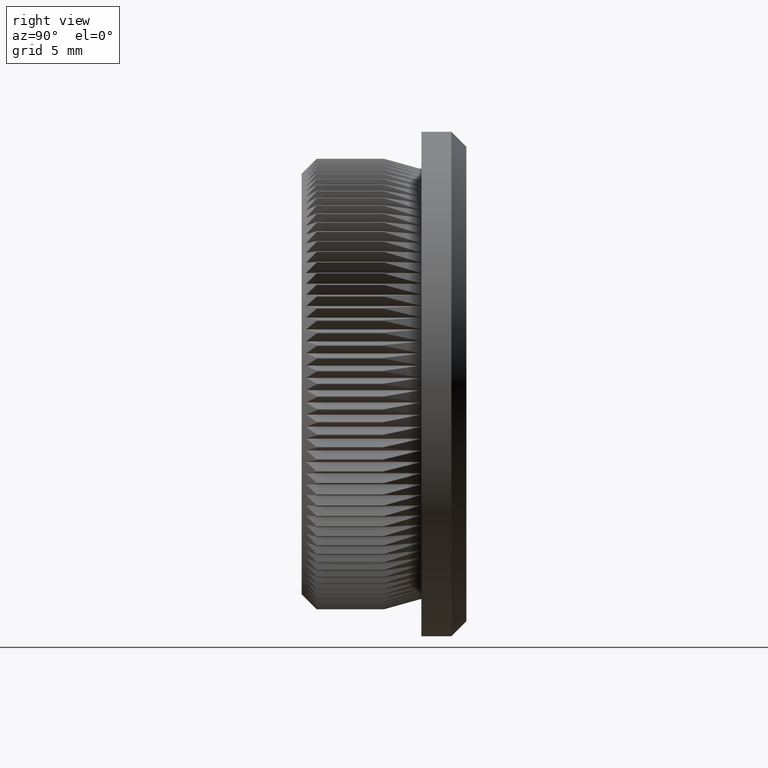
[diagram: clean part render]
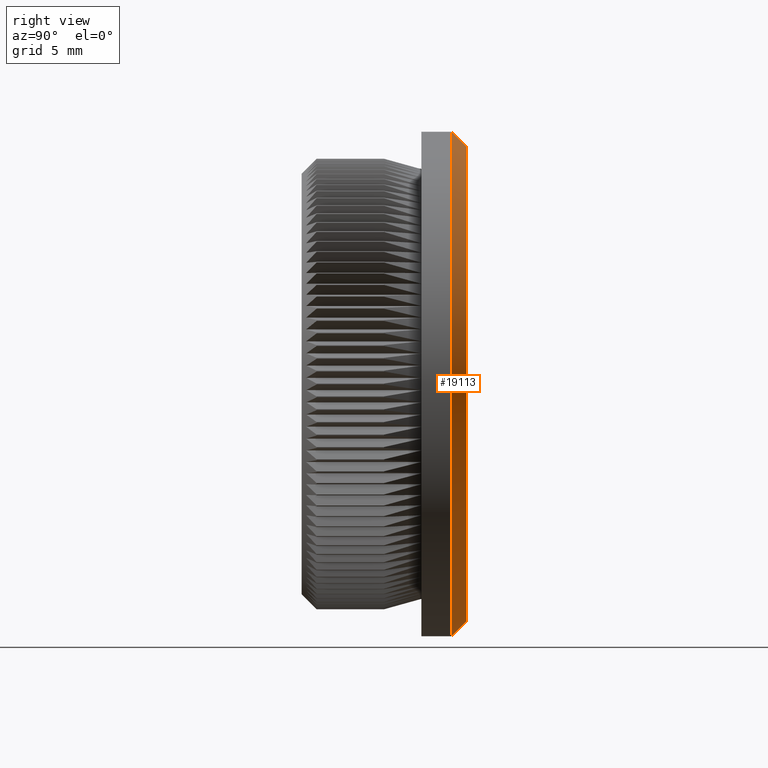
[diagram: same view with one face highlighted and labeled with its STEP entity id]
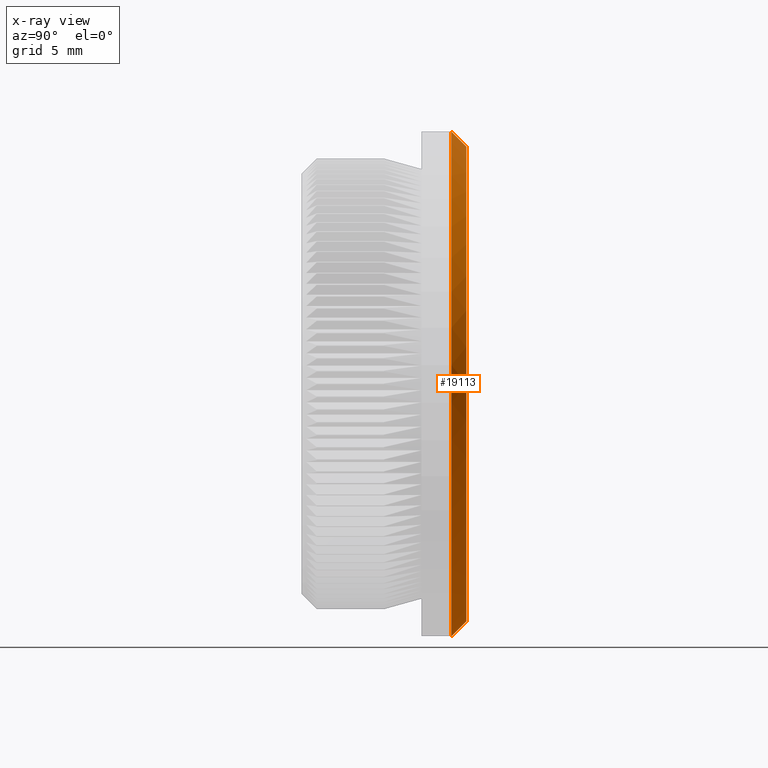
[diagram: x-ray of the same camera — body ghosted, the highlighted face saturated]
A machine part, right view. The second image highlights one B-rep face of the part: STEP entity #19113.
The next image is the same camera in x-ray: the body ghosted, the highlighted face saturated — about 0% of this face is hidden behind the body in this view.
In plain terms, the highlighted conical surface has half-angle 45 deg.
Its self-contained STEP definition (entity closure, byte-faithful):
#1326 = AXIS2_PLACEMENT_3D ( 'NONE', #23313, #6053, #8420 ) ;
#1611 = AXIS2_PLACEMENT_3D ( 'NONE', #25235, #3926, #12313 ) ;
#2223 = FACE_OUTER_BOUND ( 'NONE', #26383, .T. ) ;
#3043 = CIRCLE ( 'NONE', #1326, 16.85000000000000100 ) ;
#3302 = DIRECTION ( 'NONE',  ( 0.0000000000000000000, -0.7071067811865451300, -0.7071067811865500200 ) ) ;
#3926 = DIRECTION ( 'NONE',  ( -0.0000000000000000000, -1.000000000000000000, -0.0000000000000000000 ) ) ;
#6053 = DIRECTION ( 'NONE',  ( -0.0000000000000000000, -1.000000000000000000, -0.0000000000000000000 ) ) ;
#6550 = VERTEX_POINT ( 'NONE', #20574 ) ;
#6877 = ORIENTED_EDGE ( 'NONE', *, *, #19504, .F. ) ;
#8420 = DIRECTION ( 'NONE',  ( 0.0000000000000000000, 0.0000000000000000000, 1.000000000000000000 ) ) ;
#12092 = DIRECTION ( 'NONE',  ( 0.0000000000000000000, 0.0000000000000000000, 1.000000000000000000 ) ) ;
#12189 = DIRECTION ( 'NONE',  ( 0.0000000000000000000, 1.000000000000000000, 0.0000000000000000000 ) ) ;
#12313 = DIRECTION ( 'NONE',  ( 0.0000000000000000000, 0.0000000000000000000, -1.000000000000000000 ) ) ;
#12801 = LINE ( 'NONE', #23986, #16169 ) ;
#12984 = CIRCLE ( 'NONE', #13497, 15.84999999999998500 ) ;
#13028 = CARTESIAN_POINT ( 'NONE',  ( 0.0000000000000000000, 11.00000000000000000, -15.84999999999998500 ) ) ;
#13497 = AXIS2_PLACEMENT_3D ( 'NONE', #24823, #12189, #12092 ) ;
#13760 = VERTEX_POINT ( 'NONE', #13028 ) ;
#14587 = EDGE_CURVE ( 'NONE', #6550, #26189, #12801, .T. ) ;
#15736 = DIRECTION ( 'NONE',  ( 8.659560562354963700E-017, -0.7071067811865451300, 0.7071067811865500200 ) ) ;
#15874 = VECTOR ( 'NONE', #3302, 1000.000000000000100 ) ;
#16169 = VECTOR ( 'NONE', #15736, 1000.000000000000100 ) ;
#16344 = ORIENTED_EDGE ( 'NONE', *, *, #23287, .F. ) ;
#16789 = CARTESIAN_POINT ( 'NONE',  ( 0.0000000000000000000, 9.999999999999991100, -16.85000000000000100 ) ) ;
#19113 = ADVANCED_FACE ( 'NONE', ( #2223 ), #22704, .T. ) ;
#19504 = EDGE_CURVE ( 'NONE', #6550, #13760, #12984, .T. ) ;
#20574 = CARTESIAN_POINT ( 'NONE',  ( 2.002297516605921500E-015, 11.00000000000000000, 15.84999999999998500 ) ) ;
#21575 = LINE ( 'NONE', #24500, #15874 ) ;
#21726 = ORIENTED_EDGE ( 'NONE', *, *, #14587, .T. ) ;
#22704 = CONICAL_SURFACE ( 'NONE', #1611, 16.85000000000000100, 0.7853981633974517200 ) ;
#23287 = EDGE_CURVE ( 'NONE', #13760, #25947, #21575, .T. ) ;
#23313 = CARTESIAN_POINT ( 'NONE',  ( 0.0000000000000000000, 9.999999999999991100, 0.0000000000000000000 ) ) ;
#23749 = ORIENTED_EDGE ( 'NONE', *, *, #25896, .F. ) ;
#23986 = CARTESIAN_POINT ( 'NONE',  ( 2.063529856563290200E-015, 9.999999999999991100, 16.85000000000000100 ) ) ;
#24500 = CARTESIAN_POINT ( 'NONE',  ( 0.0000000000000000000, 9.999999999999991100, -16.85000000000000100 ) ) ;
#24823 = CARTESIAN_POINT ( 'NONE',  ( 0.0000000000000000000, 11.00000000000000000, 0.0000000000000000000 ) ) ;
#25235 = CARTESIAN_POINT ( 'NONE',  ( 0.0000000000000000000, 9.999999999999991100, 0.0000000000000000000 ) ) ;
#25896 = EDGE_CURVE ( 'NONE', #25947, #26189, #3043, .T. ) ;
#25947 = VERTEX_POINT ( 'NONE', #16789 ) ;
#26189 = VERTEX_POINT ( 'NONE', #27083 ) ;
#26383 = EDGE_LOOP ( 'NONE', ( #6877, #21726, #23749, #16344 ) ) ;
#27083 = CARTESIAN_POINT ( 'NONE',  ( 2.063529856563290200E-015, 9.999999999999991100, 16.85000000000000100 ) ) ;